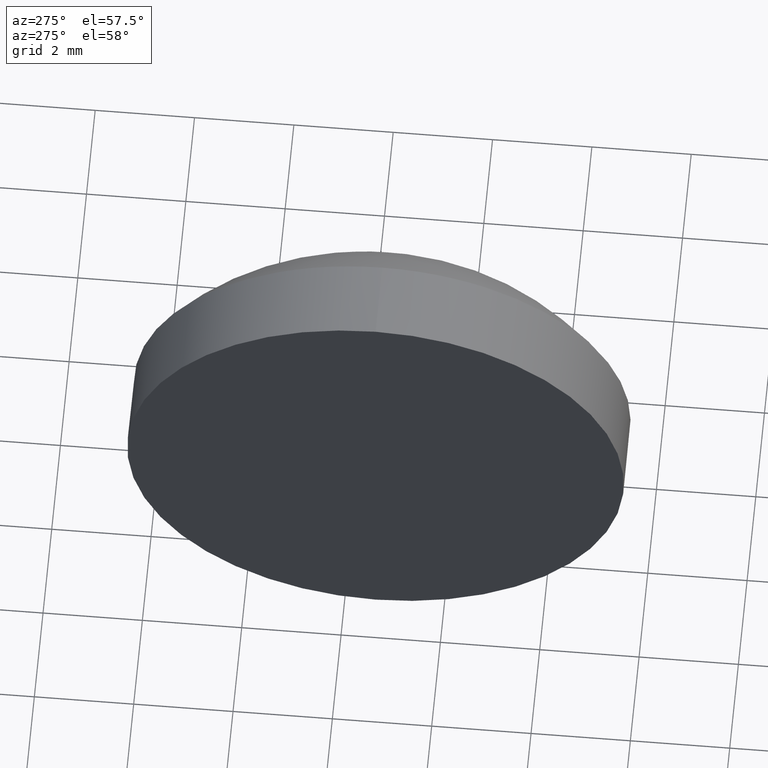
[diagram: clean part render]
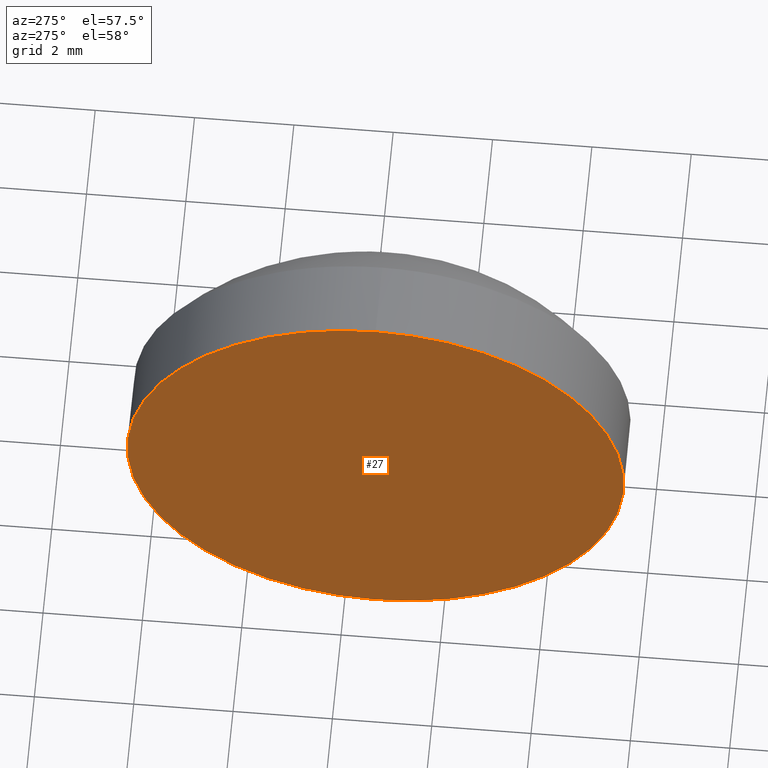
[diagram: same view with one face highlighted and labeled with its STEP entity id]
A machine part, auxiliary view. The second image highlights one B-rep face of the part: STEP entity #27.
In plain terms, the highlighted planar face has unit normal (1, 0, 0).
Its self-contained STEP definition (entity closure, byte-faithful):
#5 = CARTESIAN_POINT ( 'NONE',  ( 414.7580828219724900, 57.37242346822802100, 0.0000000000000000000 ) ) ;
#7 = EDGE_CURVE ( 'NONE', #37, #113, #88, .T. ) ;
#21 = AXIS2_PLACEMENT_3D ( 'NONE', #135, #155, #156 ) ;
#27 = ADVANCED_FACE ( 'NONE', ( #41 ), #107, .F. ) ;
#35 = AXIS2_PLACEMENT_3D ( 'NONE', #5, #118, #43 ) ;
#37 = VERTEX_POINT ( 'NONE', #40 ) ;
#40 = CARTESIAN_POINT ( 'NONE',  ( 414.7580828219724900, 57.37242346822802100, -4.999999999999997300 ) ) ;
#41 = FACE_OUTER_BOUND ( 'NONE', #165, .T. ) ;
#43 = DIRECTION ( 'NONE',  ( 0.0000000000000000000, 0.0000000000000000000, -1.000000000000000000 ) ) ;
#52 = EDGE_CURVE ( 'NONE', #113, #37, #101, .T. ) ;
#79 = CARTESIAN_POINT ( 'NONE',  ( 414.7580828219724900, 57.37242346822802100, 0.0000000000000000000 ) ) ;
#87 = ORIENTED_EDGE ( 'NONE', *, *, #52, .T. ) ;
#88 = CIRCLE ( 'NONE', #21, 4.999999999999997300 ) ;
#97 = CARTESIAN_POINT ( 'NONE',  ( 414.7580828219724900, 57.37242346822802100, 4.999999999999997300 ) ) ;
#101 = CIRCLE ( 'NONE', #159, 4.999999999999997300 ) ;
#107 = PLANE ( 'NONE',  #35 ) ;
#108 = DIRECTION ( 'NONE',  ( 0.0000000000000000000, 0.0000000000000000000, 1.000000000000000000 ) ) ;
#113 = VERTEX_POINT ( 'NONE', #97 ) ;
#118 = DIRECTION ( 'NONE',  ( 1.000000000000000000, 0.0000000000000000000, 0.0000000000000000000 ) ) ;
#129 = ORIENTED_EDGE ( 'NONE', *, *, #7, .T. ) ;
#135 = CARTESIAN_POINT ( 'NONE',  ( 414.7580828219724900, 57.37242346822802100, 0.0000000000000000000 ) ) ;
#155 = DIRECTION ( 'NONE',  ( -1.000000000000000000, -0.0000000000000000000, -0.0000000000000000000 ) ) ;
#156 = DIRECTION ( 'NONE',  ( 0.0000000000000000000, 0.0000000000000000000, 1.000000000000000000 ) ) ;
#159 = AXIS2_PLACEMENT_3D ( 'NONE', #79, #172, #108 ) ;
#165 = EDGE_LOOP ( 'NONE', ( #87, #129 ) ) ;
#172 = DIRECTION ( 'NONE',  ( -1.000000000000000000, -0.0000000000000000000, -0.0000000000000000000 ) ) ;